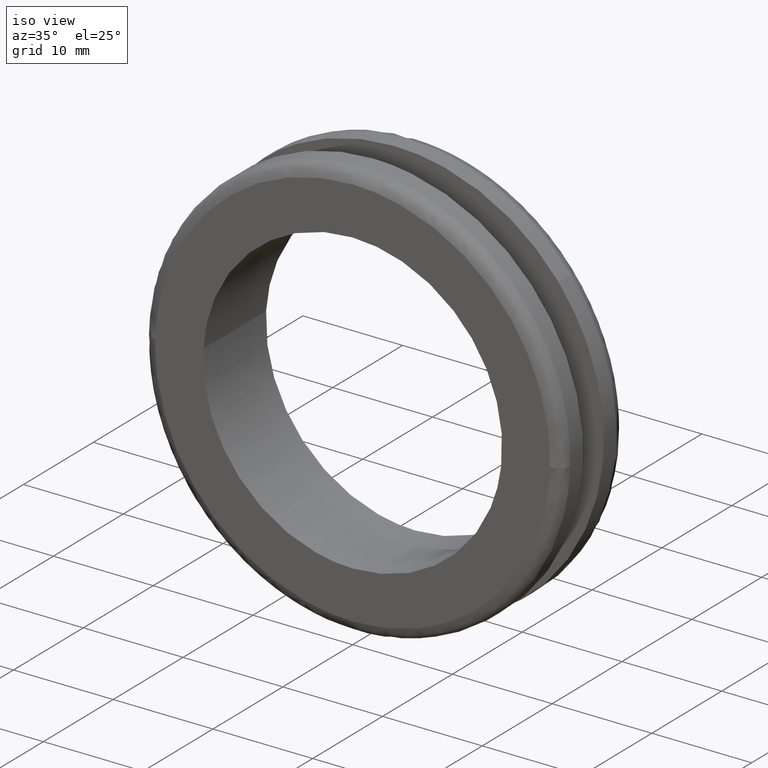
[diagram: clean part render]
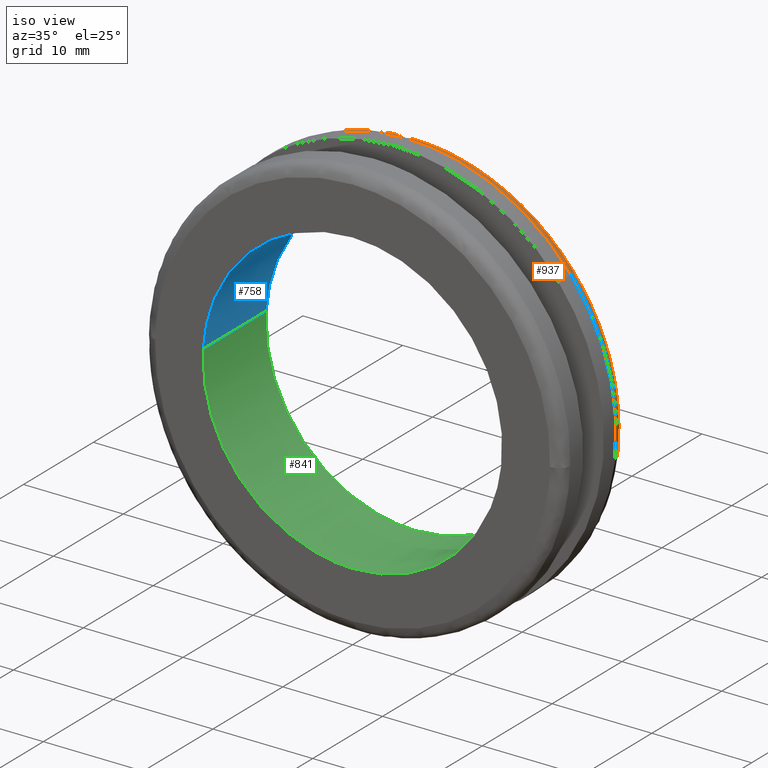
[diagram: same view with three faces highlighted in distinct colors, each labeled with its STEP entity id]
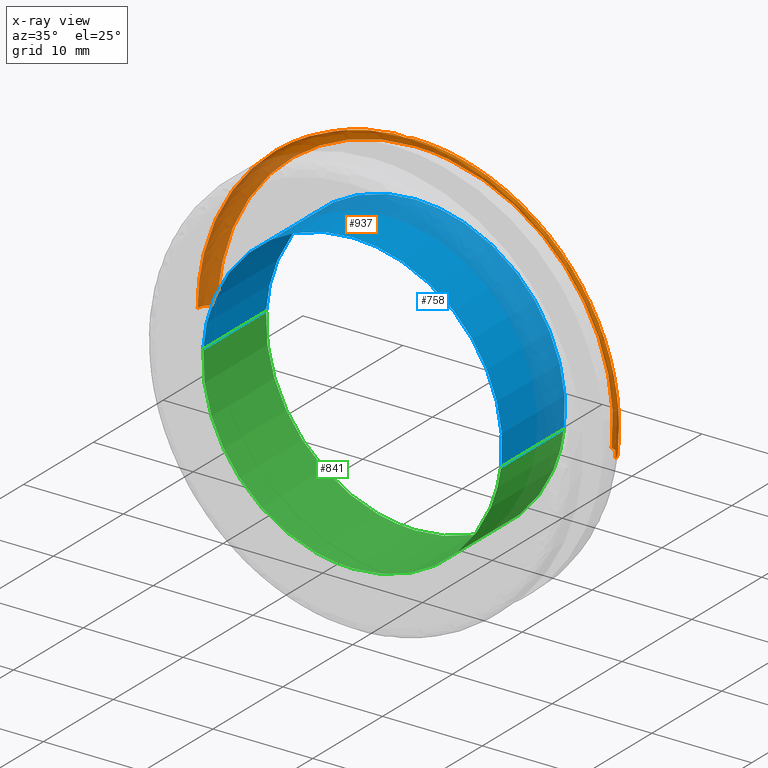
[diagram: x-ray of the same camera — body ghosted, the three highlighted faces saturated]
A machine part, iso view with three faces highlighted in distinct colors.
The next image is the same camera in x-ray (body ghosted, the three faces saturated) — at least one of them is partly hidden behind the body in this view.
Their STEP definitions:

[orange] entity #937 — the highlighted face is a freeform B-spline surface patch.
#468=CARTESIAN_POINT('',(-13.072806069207591,7.800000000011131,16.434772328112299));
#469=VERTEX_POINT('',#468);
#470=CARTESIAN_POINT('',(-21.0,7.800000000051891,8.851079E-016));
#471=VERTEX_POINT('',#470);
#472=CARTESIAN_POINT('',(-13.072806069207587,7.800000000011131,16.434772328112302));
#473=CARTESIAN_POINT('',(-20.999999999999943,7.800000000026809,10.129198581101342));
#474=CARTESIAN_POINT('',(-20.999999999999993,7.800000000051891,8.851079E-016));
#482=(BOUNDED_CURVE()B_SPLINE_CURVE(2,(#472,#473,#474),.UNSPECIFIED.,.F.,.U.)B_SPLINE_CURVE_WITH_KNOTS((3,3),(0.607863865415925,0.749999999999999),.UNSPECIFIED.)CURVE()GEOMETRIC_REPRESENTATION_ITEM()RATIONAL_B_SPLINE_CURVE((0.856305622490842,0.833477160127873,0.999999999999998))REPRESENTATION_ITEM(''));
#483=EDGE_CURVE('',#469,#471,#482,.T.);
#500=CARTESIAN_POINT('',(20.859544414485921,7.800000000055496,-2.424748815875383));
#501=VERTEX_POINT('',#500);
#515=CARTESIAN_POINT('',(16.434772329288549,7.799999999999820,13.072806067728861));
#516=VERTEX_POINT('',#515);
#517=CARTESIAN_POINT('',(20.859544414485928,7.800000000055496,-2.424748815875383));
#518=CARTESIAN_POINT('',(20.999999999999996,7.799999999999890,-1.216442411062318));
#519=CARTESIAN_POINT('',(21.0,7.799999999999890,-3.061516E-016));
#520=CARTESIAN_POINT('',(21.000000000000004,7.799999999999892,7.333527368817955));
#521=CARTESIAN_POINT('',(16.434772329288549,7.799999999999820,13.072806067728857));
#529=(BOUNDED_CURVE()B_SPLINE_CURVE(2,(#517,#518,#519,#520,#521),.UNSPECIFIED.,.F.,.U.)B_SPLINE_CURVE_WITH_KNOTS((3,2,3),(0.229999999999889,0.250000000000000,0.357863865402305),.UNSPECIFIED.)CURVE()GEOMETRIC_REPRESENTATION_ITEM()RATIONAL_B_SPLINE_CURVE((0.956886118190442,0.976568542494794,1.0,0.873629621074632,0.856305622495217))REPRESENTATION_ITEM(''));
#530=EDGE_CURVE('',#501,#516,#529,.T.);
#595=CARTESIAN_POINT('',(0.0,7.799999999999890,21.0));
#596=VERTEX_POINT('',#595);
#597=CARTESIAN_POINT('',(0.0,7.799999999999890,21.0));
#598=CARTESIAN_POINT('',(-7.333527369877913,7.799999999999890,20.999999999999996));
#599=CARTESIAN_POINT('',(-13.072806069207587,7.800000000011131,16.434772328112302));
#607=(BOUNDED_CURVE()B_SPLINE_CURVE(2,(#597,#598,#599),.UNSPECIFIED.,.F.,.U.)B_SPLINE_CURVE_WITH_KNOTS((3,3),(0.500000000000000,0.607863865415925),.UNSPECIFIED.)CURVE()GEOMETRIC_REPRESENTATION_ITEM()RATIONAL_B_SPLINE_CURVE((1.0,0.873629621058675,0.856305622490842))REPRESENTATION_ITEM(''));
#608=EDGE_CURVE('',#596,#469,#607,.T.);
#640=CARTESIAN_POINT('',(16.434772329288549,7.799999999999820,13.072806067728857));
#641=CARTESIAN_POINT('',(10.129198582265900,7.799999999999890,21.0));
#642=CARTESIAN_POINT('',(0.0,7.799999999999890,21.0));
#650=(BOUNDED_CURVE()B_SPLINE_CURVE(2,(#640,#641,#642),.UNSPECIFIED.,.F.,.U.)B_SPLINE_CURVE_WITH_KNOTS((3,3),(0.357863865402305,0.500000000000000),.UNSPECIFIED.)CURVE()GEOMETRIC_REPRESENTATION_ITEM()RATIONAL_B_SPLINE_CURVE((0.856305622495217,0.833477160111916,1.0))REPRESENTATION_ITEM(''));
#651=EDGE_CURVE('',#516,#596,#650,.T.);
#842=CARTESIAN_POINT('',(19.584905655962345,8.997110752785288,-2.276580406893847));
#843=CARTESIAN_POINT('',(19.716778334758423,8.997110752785288,-1.142109616844359));
#844=CARTESIAN_POINT('',(19.716778334758416,8.997110752785286,-3.621794E-015));
#845=CARTESIAN_POINT('',(19.716778334758427,8.997110752785284,19.716778334758409));
#846=CARTESIAN_POINT('',(4.829058E-015,8.997110752785286,19.716778334758416));
#847=CARTESIAN_POINT('',(-19.716778334758409,8.997110752785284,19.716778334758427));
#848=CARTESIAN_POINT('',(-19.716778334758416,8.997110752785286,6.036323E-015));
#849=CARTESIAN_POINT('',(20.952207806636945,9.092803943791667,-2.435517771270782));
#850=CARTESIAN_POINT('',(21.093287055048435,9.092803943791669,-1.221844947861489));
#851=CARTESIAN_POINT('',(21.093287055048425,9.092803943791667,-3.874646E-015));
#852=CARTESIAN_POINT('',(21.093287055048421,9.092803943791667,21.093287055048417));
#853=CARTESIAN_POINT('',(5.166195E-015,9.092803943791667,21.093287055048425));
#854=CARTESIAN_POINT('',(-21.093287055048417,9.092803943791667,21.093287055048425));
#855=CARTESIAN_POINT('',(-21.093287055048425,9.092803943791667,6.457743E-015));
#856=CARTESIAN_POINT('',(20.856643796430927,7.716331072732809,-2.424409259590359));
#857=CARTESIAN_POINT('',(20.997079575721664,7.716331072732809,-1.216272055298318));
#858=CARTESIAN_POINT('',(20.997079575721667,7.716331072732809,-3.856974E-015));
#859=CARTESIAN_POINT('',(20.997079575721664,7.716331072732808,20.997079575721664));
#860=CARTESIAN_POINT('',(5.142631E-015,7.716331072732809,20.997079575721667));
#861=CARTESIAN_POINT('',(-20.997079575721664,7.716331072732808,20.997079575721664));
#862=CARTESIAN_POINT('',(-20.997079575721667,7.716331072732809,6.428289E-015));
#870=(BOUNDED_SURFACE()B_SPLINE_SURFACE(2,2,((#842,#849,#856),(#843,#850,#857),(#844,#851,#858),(#845,#852,#859),(#846,#853,#860),(#847,#854,#861),(#848,#855,#862)),.UNSPECIFIED.,.F.,.F.,.U.)B_SPLINE_SURFACE_WITH_KNOTS((3,2,2,3),(3,3),(0.0,2.783125387559395,37.572225909523503,72.361326431487598),(0.0,2.186845457319874),.UNSPECIFIED.)GEOMETRIC_REPRESENTATION_ITEM()RATIONAL_B_SPLINE_SURFACE(((0.876476107372700,0.573569792434621,0.871620813974785),(0.894504543896973,0.585367680030376,0.889549380864171),(0.915966964431935,0.599412781759712,0.910892908998245),(0.647686451892679,0.423848842712185,0.644098552887400),(0.915966964431935,0.599412781759712,0.910892908998245),(0.647686451892679,0.423848842712185,0.644098552887400),(0.915966964431935,0.599412781759712,0.910892908998245)))REPRESENTATION_ITEM('')SURFACE());
#871=ORIENTED_EDGE('',*,*,#651,.F.);
#872=ORIENTED_EDGE('',*,*,#530,.F.);
#873=CARTESIAN_POINT('',(19.667570450064581,8.999999999999945,-2.286191740977825));
#874=VERTEX_POINT('',#873);
#875=CARTESIAN_POINT('',(19.667570450064577,8.999999999999945,-2.286191740977825));
#876=CARTESIAN_POINT('',(20.859544414376245,8.999999995718644,-2.424748815855713));
#877=CARTESIAN_POINT('',(20.859544414485924,7.800000000055498,-2.424748815875383));
#885=(BOUNDED_CURVE()B_SPLINE_CURVE(2,(#875,#876,#877),.UNSPECIFIED.,.F.,.U.)B_SPLINE_CURVE_WITH_KNOTS((3,3),(-1.736413117379727,-0.276558718110652),.UNSPECIFIED.)CURVE()GEOMETRIC_REPRESENTATION_ITEM()RATIONAL_B_SPLINE_CURVE((0.850203275032256,0.599621899853281,0.845789311865304))REPRESENTATION_ITEM(''));
#886=EDGE_CURVE('',#874,#501,#885,.T.);
#887=ORIENTED_EDGE('',*,*,#886,.F.);
#888=CARTESIAN_POINT('',(0.0,9.0,19.800000000000001));
#889=VERTEX_POINT('',#888);
#890=CARTESIAN_POINT('',(19.667570450064581,8.999999999999945,-2.286191740977825));
#891=CARTESIAN_POINT('',(19.800000000000004,9.000000000000002,-1.146931416193113));
#892=CARTESIAN_POINT('',(19.800000000000001,9.0,-3.061516E-016));
#893=CARTESIAN_POINT('',(19.800000000000001,9.0,19.800000000000001));
#894=CARTESIAN_POINT('',(0.0,9.0,19.800000000000001));
#902=(BOUNDED_CURVE()B_SPLINE_CURVE(2,(#890,#891,#892,#893,#894),.UNSPECIFIED.,.F.,.U.)B_SPLINE_CURVE_WITH_KNOTS((3,2,3),(0.229999999999061,0.250000000000000,0.500000000000000),.UNSPECIFIED.)CURVE()GEOMETRIC_REPRESENTATION_ITEM()RATIONAL_B_SPLINE_CURVE((0.956886118188811,0.976568542493824,1.0,0.707106781186547,1.0))REPRESENTATION_ITEM(''));
#903=EDGE_CURVE('',#874,#889,#902,.T.);
#904=ORIENTED_EDGE('',*,*,#903,.T.);
#905=CARTESIAN_POINT('',(-19.800000000222230,8.999999999999945,8.852452E-016));
#906=VERTEX_POINT('',#905);
#907=CARTESIAN_POINT('',(0.0,9.0,19.800000000000001));
#908=CARTESIAN_POINT('',(-19.799999999999901,9.000000000000002,19.800000000000001));
#909=CARTESIAN_POINT('',(-19.800000000222230,8.999999999999945,8.852452E-016));
#917=(BOUNDED_CURVE()B_SPLINE_CURVE(2,(#907,#908,#909),.UNSPECIFIED.,.F.,.U.)B_SPLINE_CURVE_WITH_KNOTS((3,3),(0.500000000000000,0.749999999999999),.UNSPECIFIED.)CURVE()GEOMETRIC_REPRESENTATION_ITEM()RATIONAL_B_SPLINE_CURVE((1.0,0.707106781186548,0.999999999999998))REPRESENTATION_ITEM(''));
#918=EDGE_CURVE('',#889,#906,#917,.T.);
#919=ORIENTED_EDGE('',*,*,#918,.T.);
#920=CARTESIAN_POINT('',(-19.800000000222223,8.999999999999945,8.852452E-016));
#921=CARTESIAN_POINT('',(-20.999999999895994,8.999999999555429,1.748501E-015));
#922=CARTESIAN_POINT('',(-21.0,7.800000000051891,8.851079E-016));
#930=(BOUNDED_CURVE()B_SPLINE_CURVE(2,(#920,#921,#922),.UNSPECIFIED.,.F.,.U.)B_SPLINE_CURVE_WITH_KNOTS((3,3),(-1.736413120688837,-0.276558718104464),.UNSPECIFIED.)CURVE()GEOMETRIC_REPRESENTATION_ITEM()RATIONAL_B_SPLINE_CURVE((0.888510408925024,0.626638727321098,0.883897567107215))REPRESENTATION_ITEM(''));
#931=EDGE_CURVE('',#906,#471,#930,.T.);
#932=ORIENTED_EDGE('',*,*,#931,.T.);
#933=ORIENTED_EDGE('',*,*,#483,.F.);
#934=ORIENTED_EDGE('',*,*,#608,.F.);
#935=EDGE_LOOP('',(#871,#872,#887,#904,#919,#932,#933,#934));
#936=FACE_OUTER_BOUND('',#935,.T.);
#937=ADVANCED_FACE('',(#936),#870,.T.);

[blue] entity #758 — the highlighted face is a freeform B-spline surface patch.
#656=CARTESIAN_POINT('',(14.895142895454988,9.225000000000003,-1.770513519851377));
#657=CARTESIAN_POINT('',(14.945814231729083,9.225000000000003,-1.344220929569665));
#658=CARTESIAN_POINT('',(14.972021976328000,9.225000000000001,-0.915728093022855));
#659=CARTESIAN_POINT('',(15.887750069350853,9.225000000000001,14.056293883305147));
#660=CARTESIAN_POINT('',(0.915728093022855,9.225000000000001,14.972021976328000));
#661=CARTESIAN_POINT('',(-14.056293883305147,9.225000000000001,15.887750069350853));
#662=CARTESIAN_POINT('',(-14.972021976328000,9.225000000000001,0.915728093022854));
#663=CARTESIAN_POINT('',(14.895142895454988,-0.230625000000005,-1.770513519851377));
#664=CARTESIAN_POINT('',(14.945814231729083,-0.230625000000005,-1.344220929569665));
#665=CARTESIAN_POINT('',(14.972021976328000,-0.230625000000005,-0.915728093022855));
#666=CARTESIAN_POINT('',(15.887750069350853,-0.230625000000005,14.056293883305147));
#667=CARTESIAN_POINT('',(0.915728093022855,-0.230625000000005,14.972021976328000));
#668=CARTESIAN_POINT('',(-14.056293883305147,-0.230625000000005,15.887750069350853));
#669=CARTESIAN_POINT('',(-14.972021976328000,-0.230625000000005,0.915728093022854));
#677=(BOUNDED_SURFACE()B_SPLINE_SURFACE(2,1,((#656,#663),(#657,#664),(#658,#665),(#659,#666),(#660,#667),(#661,#668),(#662,#669)),.UNSPECIFIED.,.F.,.F.,.U.)B_SPLINE_SURFACE_WITH_KNOTS((3,2,2,3),(2,2),(0.0,0.994112549695429,25.846926292081129,50.699740034466821),(0.0,9.455625000000008),.UNSPECIFIED.)GEOMETRIC_REPRESENTATION_ITEM()RATIONAL_B_SPLINE_SURFACE(((0.977505800795127,0.977505800795127),(0.988284271247462,0.988284271247462),(1.0,1.0),(0.707106781186548,0.707106781186548),(1.0,1.0),(0.707106781186548,0.707106781186548),(1.0,1.0)))REPRESENTATION_ITEM('')SURFACE());
#678=CARTESIAN_POINT('',(14.895144575568130,9.000000000000092,-1.770499385122952));
#679=VERTEX_POINT('',#678);
#680=CARTESIAN_POINT('',(0.0,9.0,15.0));
#681=VERTEX_POINT('',#680);
#682=CARTESIAN_POINT('',(14.895144575568130,9.000000000000092,-1.770499385122953));
#683=CARTESIAN_POINT('',(15.000000000000002,9.0,-0.888354652700173));
#684=CARTESIAN_POINT('',(15.0,9.0,-3.061516E-016));
#685=CARTESIAN_POINT('',(14.999999999999996,9.0,14.999999999999996));
#686=CARTESIAN_POINT('',(0.0,9.0,15.0));
#694=(BOUNDED_CURVE()B_SPLINE_CURVE(2,(#682,#683,#684,#685,#686),.UNSPECIFIED.,.F.,.U.)B_SPLINE_CURVE_WITH_KNOTS((3,2,3),(0.229562633891089,0.250000000000000,0.500000000000000),.UNSPECIFIED.)CURVE()GEOMETRIC_REPRESENTATION_ITEM()RATIONAL_B_SPLINE_CURVE((0.956027068530562,0.976056136225169,1.0,0.707106781186547,1.0))REPRESENTATION_ITEM(''));
#695=EDGE_CURVE('',#679,#681,#694,.T.);
#696=ORIENTED_EDGE('',*,*,#695,.F.);
#697=CARTESIAN_POINT('',(14.895144555315481,-3.762802E-015,-1.770499555509084));
#698=VERTEX_POINT('',#697);
#699=CARTESIAN_POINT('',(14.895144575568130,9.000000000000092,-1.770499385122952));
#700=CARTESIAN_POINT('',(14.895144555315481,-3.762802E-015,-1.770499555509084));
#701=QUASI_UNIFORM_CURVE('',1,(#699,#700),.UNSPECIFIED.,.F.,.U.);
#702=EDGE_CURVE('',#679,#698,#701,.T.);
#703=ORIENTED_EDGE('',*,*,#702,.T.);
#704=CARTESIAN_POINT('',(0.0,-2.755364E-015,15.0));
#705=VERTEX_POINT('',#704);
#706=CARTESIAN_POINT('',(14.895144555315476,-3.762802E-015,-1.770499555509084));
#707=CARTESIAN_POINT('',(14.999999999999998,-2.755364E-015,-0.888354738793865));
#708=CARTESIAN_POINT('',(15.0,-2.755364E-015,-3.061516E-016));
#709=CARTESIAN_POINT('',(14.999999999999996,-2.755364E-015,14.999999999999996));
#710=CARTESIAN_POINT('',(0.0,-2.755364E-015,15.0));
#718=(BOUNDED_CURVE()B_SPLINE_CURVE(2,(#706,#707,#708,#709,#710),.UNSPECIFIED.,.F.,.U.)B_SPLINE_CURVE_WITH_KNOTS((3,2,3),(0.229562631957854,0.250000000000000,0.500000000000000),.UNSPECIFIED.)CURVE()GEOMETRIC_REPRESENTATION_ITEM()RATIONAL_B_SPLINE_CURVE((0.956027064741336,0.976056133960243,1.0,0.707106781186547,1.0))REPRESENTATION_ITEM(''));
#719=EDGE_CURVE('',#698,#705,#718,.T.);
#720=ORIENTED_EDGE('',*,*,#719,.T.);
#721=CARTESIAN_POINT('',(-14.972022853837400,-2.765461E-015,0.915713745645394));
#722=VERTEX_POINT('',#721);
#723=CARTESIAN_POINT('',(0.0,-2.755364E-015,15.0));
#724=CARTESIAN_POINT('',(-14.110604550744977,-2.755364E-015,15.0));
#725=CARTESIAN_POINT('',(-14.972022853837398,-2.765461E-015,0.915713745645394));
#733=(BOUNDED_CURVE()B_SPLINE_CURVE(2,(#723,#724,#725),.UNSPECIFIED.,.F.,.U.)B_SPLINE_CURVE_WITH_KNOTS((3,3),(0.500000000000000,0.739333127589991),.UNSPECIFIED.)CURVE()GEOMETRIC_REPRESENTATION_ITEM()RATIONAL_B_SPLINE_CURVE((1.0,0.719603799565907,0.976072396045746))REPRESENTATION_ITEM(''));
#734=EDGE_CURVE('',#705,#722,#733,.T.);
#735=ORIENTED_EDGE('',*,*,#734,.T.);
#736=CARTESIAN_POINT('',(-14.972022864544920,9.000000000000092,0.915713570573430));
#737=VERTEX_POINT('',#736);
#738=CARTESIAN_POINT('',(-14.972022864544920,9.000000000000092,0.915713570573430));
#739=CARTESIAN_POINT('',(-14.972022853837400,-2.765461E-015,0.915713745645394));
#740=QUASI_UNIFORM_CURVE('',1,(#738,#739),.UNSPECIFIED.,.F.,.U.);
#741=EDGE_CURVE('',#737,#722,#740,.T.);
#742=ORIENTED_EDGE('',*,*,#741,.F.);
#743=CARTESIAN_POINT('',(0.0,9.0,15.0));
#744=CARTESIAN_POINT('',(-14.110604716052444,9.0,15.0));
#745=CARTESIAN_POINT('',(-14.972022864544918,9.000000000000092,0.915713570573430));
#753=(BOUNDED_CURVE()B_SPLINE_CURVE(2,(#743,#744,#745),.UNSPECIFIED.,.F.,.U.)B_SPLINE_CURVE_WITH_KNOTS((3,3),(0.500000000000000,0.739333129607628),.UNSPECIFIED.)CURVE()GEOMETRIC_REPRESENTATION_ITEM()RATIONAL_B_SPLINE_CURVE((1.0,0.719603797202098,0.976072400369933))REPRESENTATION_ITEM(''));
#754=EDGE_CURVE('',#681,#737,#753,.T.);
#755=ORIENTED_EDGE('',*,*,#754,.F.);
#756=EDGE_LOOP('',(#696,#703,#720,#735,#742,#755));
#757=FACE_OUTER_BOUND('',#756,.T.);
#758=ADVANCED_FACE('',(#757),#677,.F.);

[green] entity #841 — the highlighted face is a freeform B-spline surface patch.
#678=CARTESIAN_POINT('',(14.895144575568130,9.000000000000092,-1.770499385122952));
#679=VERTEX_POINT('',#678);
#697=CARTESIAN_POINT('',(14.895144555315481,-3.762802E-015,-1.770499555509084));
#698=VERTEX_POINT('',#697);
#699=CARTESIAN_POINT('',(14.895144575568130,9.000000000000092,-1.770499385122952));
#700=CARTESIAN_POINT('',(14.895144555315481,-3.762802E-015,-1.770499555509084));
#701=QUASI_UNIFORM_CURVE('',1,(#699,#700),.UNSPECIFIED.,.F.,.U.);
#702=EDGE_CURVE('',#679,#698,#701,.T.);
#721=CARTESIAN_POINT('',(-14.972022853837400,-2.765461E-015,0.915713745645394));
#722=VERTEX_POINT('',#721);
#736=CARTESIAN_POINT('',(-14.972022864544920,9.000000000000092,0.915713570573430));
#737=VERTEX_POINT('',#736);
#738=CARTESIAN_POINT('',(-14.972022864544920,9.000000000000092,0.915713570573430));
#739=CARTESIAN_POINT('',(-14.972022853837400,-2.765461E-015,0.915713745645394));
#740=QUASI_UNIFORM_CURVE('',1,(#738,#739),.UNSPECIFIED.,.F.,.U.);
#741=EDGE_CURVE('',#737,#722,#740,.T.);
#759=CARTESIAN_POINT('',(-14.972021976328000,9.225000000000001,0.915728093022854));
#760=CARTESIAN_POINT('',(-15.887750069350853,9.225000000000001,-14.056293883305147));
#761=CARTESIAN_POINT('',(-0.915728093022855,9.225000000000001,-14.972021976328000));
#762=CARTESIAN_POINT('',(13.223152362592515,9.225000000000001,-15.836792950987912));
#763=CARTESIAN_POINT('',(14.895142895454988,9.225000000000003,-1.770513519851377));
#764=CARTESIAN_POINT('',(-14.972021976328000,-0.230625000000005,0.915728093022854));
#765=CARTESIAN_POINT('',(-15.887750069350853,-0.230625000000005,-14.056293883305147));
#766=CARTESIAN_POINT('',(-0.915728093022855,-0.230625000000005,-14.972021976328000));
#767=CARTESIAN_POINT('',(13.223152362592515,-0.230625000000005,-15.836792950987912));
#768=CARTESIAN_POINT('',(14.895142895454988,-0.230625000000005,-1.770513519851377));
#776=(BOUNDED_SURFACE()B_SPLINE_SURFACE(2,1,((#759,#764),(#760,#765),(#761,#766),(#762,#767),(#763,#768)),.UNSPECIFIED.,.F.,.F.,.U.)B_SPLINE_SURFACE_WITH_KNOTS((3,2,3),(2,2),(0.0,24.852813742385699,48.711514935075961),(0.0,9.455625000000008),.UNSPECIFIED.)GEOMETRIC_REPRESENTATION_ITEM()RATIONAL_B_SPLINE_SURFACE(((1.0,1.0),(0.707106781186548,0.707106781186548),(1.0,1.0),(0.718822509939086,0.718822509939086),(0.977505800795127,0.977505800795127)))REPRESENTATION_ITEM('')SURFACE());
#777=CARTESIAN_POINT('',(0.0,9.0,-15.0));
#778=VERTEX_POINT('',#777);
#779=CARTESIAN_POINT('',(0.0,9.0,-15.0));
#780=CARTESIAN_POINT('',(13.322630620756192,9.000000000000002,-15.000000000000009));
#781=CARTESIAN_POINT('',(14.895144575568130,9.000000000000092,-1.770499385122953));
#789=(BOUNDED_CURVE()B_SPLINE_CURVE(2,(#779,#780,#781),.UNSPECIFIED.,.F.,.U.)B_SPLINE_CURVE_WITH_KNOTS((3,3),(0.0,0.229562633891089),.UNSPECIFIED.)CURVE()GEOMETRIC_REPRESENTATION_ITEM()RATIONAL_B_SPLINE_CURVE((1.0,0.731050644961379,0.956027068530562))REPRESENTATION_ITEM(''));
#790=EDGE_CURVE('',#778,#679,#789,.T.);
#791=ORIENTED_EDGE('',*,*,#790,.F.);
#792=CARTESIAN_POINT('',(-14.972022864544918,9.000000000000092,0.915713570573430));
#793=CARTESIAN_POINT('',(-14.999999999999996,9.0,0.458284167894892));
#794=CARTESIAN_POINT('',(-15.0,9.0,-3.061516E-016));
#795=CARTESIAN_POINT('',(-14.999999999999996,9.0,-14.999999999999996));
#796=CARTESIAN_POINT('',(0.0,9.0,-15.0));
#804=(BOUNDED_CURVE()B_SPLINE_CURVE(2,(#792,#793,#794,#795,#796),.UNSPECIFIED.,.F.,.U.)B_SPLINE_CURVE_WITH_KNOTS((3,2,3),(0.739333129607628,0.750000000000000,1.0),.UNSPECIFIED.)CURVE()GEOMETRIC_REPRESENTATION_ITEM()RATIONAL_B_SPLINE_CURVE((0.976072400369933,0.987502983984449,1.0,0.707106781186547,1.0))REPRESENTATION_ITEM(''));
#805=EDGE_CURVE('',#737,#778,#804,.T.);
#806=ORIENTED_EDGE('',*,*,#805,.F.);
#807=ORIENTED_EDGE('',*,*,#741,.T.);
#808=CARTESIAN_POINT('',(0.0,-2.755364E-015,-15.0));
#809=VERTEX_POINT('',#808);
#810=CARTESIAN_POINT('',(-14.972022853837398,-2.765461E-015,0.915713745645394));
#811=CARTESIAN_POINT('',(-14.999999999999998,-2.755364E-015,0.458284255676304));
#812=CARTESIAN_POINT('',(-15.0,-2.755364E-015,-3.061516E-016));
#813=CARTESIAN_POINT('',(-14.999999999999996,-2.755364E-015,-14.999999999999996));
#814=CARTESIAN_POINT('',(0.0,-2.755364E-015,-15.0));
#822=(BOUNDED_CURVE()B_SPLINE_CURVE(2,(#810,#811,#812,#813,#814),.UNSPECIFIED.,.F.,.U.)B_SPLINE_CURVE_WITH_KNOTS((3,2,3),(0.739333127589991,0.750000000000000,1.0),.UNSPECIFIED.)CURVE()GEOMETRIC_REPRESENTATION_ITEM()RATIONAL_B_SPLINE_CURVE((0.976072396045746,0.987502981620640,1.0,0.707106781186547,1.0))REPRESENTATION_ITEM(''));
#823=EDGE_CURVE('',#722,#809,#822,.T.);
#824=ORIENTED_EDGE('',*,*,#823,.T.);
#825=CARTESIAN_POINT('',(0.0,-2.755364E-015,-15.0));
#826=CARTESIAN_POINT('',(13.322630467285304,-2.755364E-015,-14.999999999999996));
#827=CARTESIAN_POINT('',(14.895144555315476,-3.762802E-015,-1.770499555509084));
#835=(BOUNDED_CURVE()B_SPLINE_CURVE(2,(#825,#826,#827),.UNSPECIFIED.,.F.,.U.)B_SPLINE_CURVE_WITH_KNOTS((3,3),(0.0,0.229562631957854),.UNSPECIFIED.)CURVE()GEOMETRIC_REPRESENTATION_ITEM()RATIONAL_B_SPLINE_CURVE((1.0,0.731050647226305,0.956027064741336))REPRESENTATION_ITEM(''));
#836=EDGE_CURVE('',#809,#698,#835,.T.);
#837=ORIENTED_EDGE('',*,*,#836,.T.);
#838=ORIENTED_EDGE('',*,*,#702,.F.);
#839=EDGE_LOOP('',(#791,#806,#807,#824,#837,#838));
#840=FACE_OUTER_BOUND('',#839,.T.);
#841=ADVANCED_FACE('',(#840),#776,.F.);